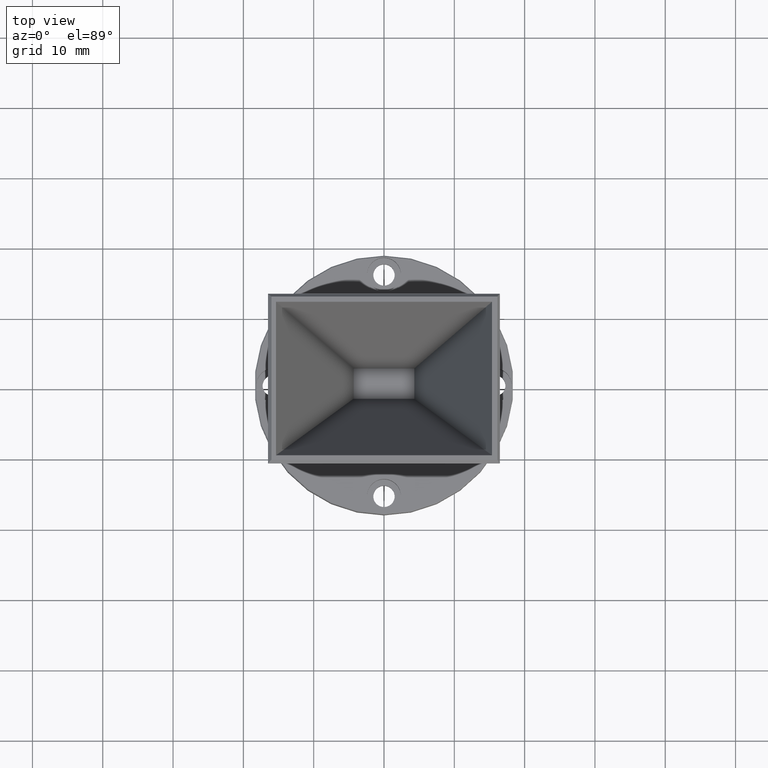
[diagram: clean part render]
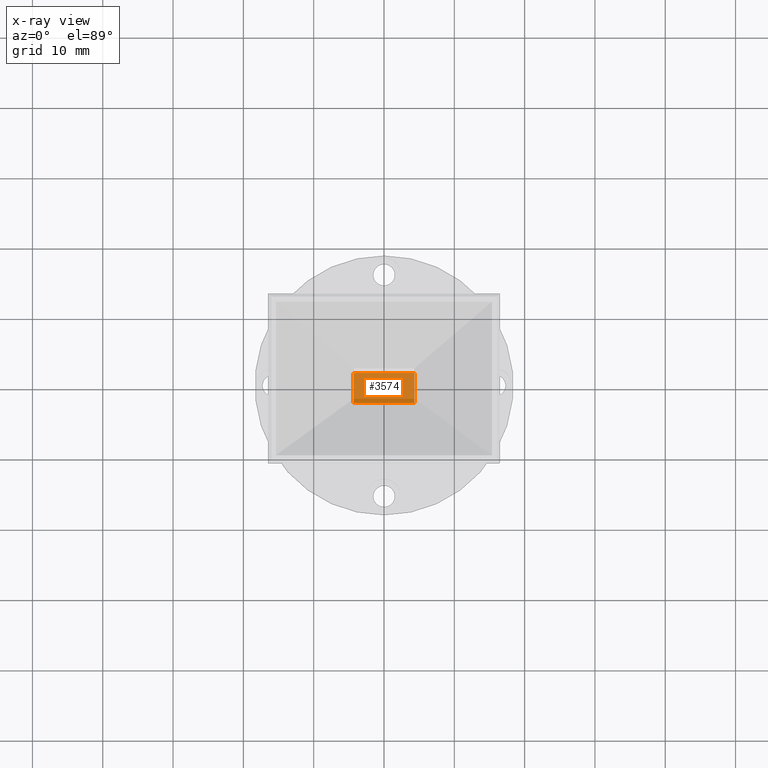
[diagram: x-ray — body ghosted, one internal face saturated and labeled with its STEP entity id]
A machine part, top view, then the same camera in x-ray: the body is ghosted and one INTERNAL B-rep face — a face not visible from any outside direction — is saturated and labeled: STEP entity #3574.
In plain terms, the highlighted planar face has unit normal (0, 0, -1).
Its self-contained STEP definition (entity closure, byte-faithful):
#59 = ORIENTED_EDGE ( 'NONE', *, *, #19568, .F. ) ;
#462 = VECTOR ( 'NONE', #16054, 39.37007874015748100 ) ;
#917 = CARTESIAN_POINT ( 'NONE',  ( 0.0000000000000000000, 0.0000000000000000000, -0.3399999999999999100 ) ) ;
#924 = EDGE_CURVE ( 'NONE', #18470, #7481, #8313, .T. ) ;
#2412 = VECTOR ( 'NONE', #20150, 39.37007874015748100 ) ;
#2416 = DIRECTION ( 'NONE',  ( 0.0000000000000000000, 0.0000000000000000000, -1.000000000000000000 ) ) ;
#2516 = ORIENTED_EDGE ( 'NONE', *, *, #924, .F. ) ;
#3525 = AXIS2_PLACEMENT_3D ( 'NONE', #917, #2416, #11810 ) ;
#3574 = ADVANCED_FACE ( 'NONE', ( #19426 ), #16506, .T. ) ;
#3640 = LINE ( 'NONE', #10726, #2412 ) ;
#4110 = LINE ( 'NONE', #8609, #5789 ) ;
#4323 = VERTEX_POINT ( 'NONE', #8657 ) ;
#5200 = CARTESIAN_POINT ( 'NONE',  ( -0.1699999999999999600, -0.08500000000000004800, -0.3399999999999999100 ) ) ;
#5789 = VECTOR ( 'NONE', #13285, 39.37007874015748100 ) ;
#6899 = CARTESIAN_POINT ( 'NONE',  ( 0.1700000000000000400, -0.08499999999999999200, -0.3399999999999999100 ) ) ;
#7291 = ORIENTED_EDGE ( 'NONE', *, *, #14769, .F. ) ;
#7481 = VERTEX_POINT ( 'NONE', #16076 ) ;
#8313 = LINE ( 'NONE', #16324, #11499 ) ;
#8609 = CARTESIAN_POINT ( 'NONE',  ( 0.1700000000000000400, -0.08499999999999999200, -0.3399999999999999100 ) ) ;
#8657 = CARTESIAN_POINT ( 'NONE',  ( -0.1699999999999999600, -0.08500000000000004800, -0.3399999999999999100 ) ) ;
#8762 = ORIENTED_EDGE ( 'NONE', *, *, #10222, .F. ) ;
#9584 = CARTESIAN_POINT ( 'NONE',  ( 0.1700000000000000400, 0.08499999999999997800, -0.3399999999999999100 ) ) ;
#10222 = EDGE_CURVE ( 'NONE', #4323, #19285, #4110, .T. ) ;
#10532 = EDGE_LOOP ( 'NONE', ( #8762, #7291, #2516, #59 ) ) ;
#10726 = CARTESIAN_POINT ( 'NONE',  ( 0.1700000000000000400, -0.08499999999999999200, -0.3399999999999999100 ) ) ;
#11499 = VECTOR ( 'NONE', #12992, 39.37007874015748100 ) ;
#11810 = DIRECTION ( 'NONE',  ( -1.000000000000000000, 0.0000000000000000000, -0.0000000000000000000 ) ) ;
#12992 = DIRECTION ( 'NONE',  ( -1.000000000000000000, -1.004355880023626200E-016, 0.0000000000000000000 ) ) ;
#13285 = DIRECTION ( 'NONE',  ( 1.000000000000000000, 1.506533820035439200E-016, 0.0000000000000000000 ) ) ;
#13370 = LINE ( 'NONE', #5200, #462 ) ;
#14769 = EDGE_CURVE ( 'NONE', #7481, #4323, #13370, .T. ) ;
#16054 = DIRECTION ( 'NONE',  ( 0.0000000000000000000, -1.000000000000000000, 0.0000000000000000000 ) ) ;
#16076 = CARTESIAN_POINT ( 'NONE',  ( -0.1699999999999999600, 0.08499999999999995100, -0.3399999999999999100 ) ) ;
#16324 = CARTESIAN_POINT ( 'NONE',  ( 0.1700000000000000400, 0.08499999999999997800, -0.3399999999999999100 ) ) ;
#16506 = PLANE ( 'NONE',  #3525 ) ;
#18470 = VERTEX_POINT ( 'NONE', #9584 ) ;
#19285 = VERTEX_POINT ( 'NONE', #6899 ) ;
#19426 = FACE_OUTER_BOUND ( 'NONE', #10532, .T. ) ;
#19568 = EDGE_CURVE ( 'NONE', #19285, #18470, #3640, .T. ) ;
#20150 = DIRECTION ( 'NONE',  ( 0.0000000000000000000, 1.000000000000000000, 0.0000000000000000000 ) ) ;